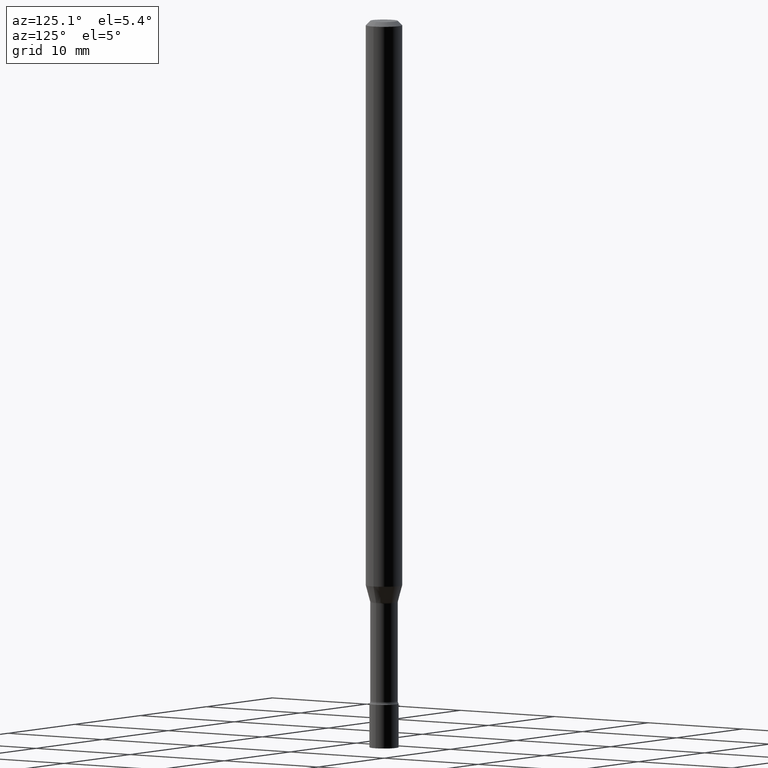
[diagram: clean part render]
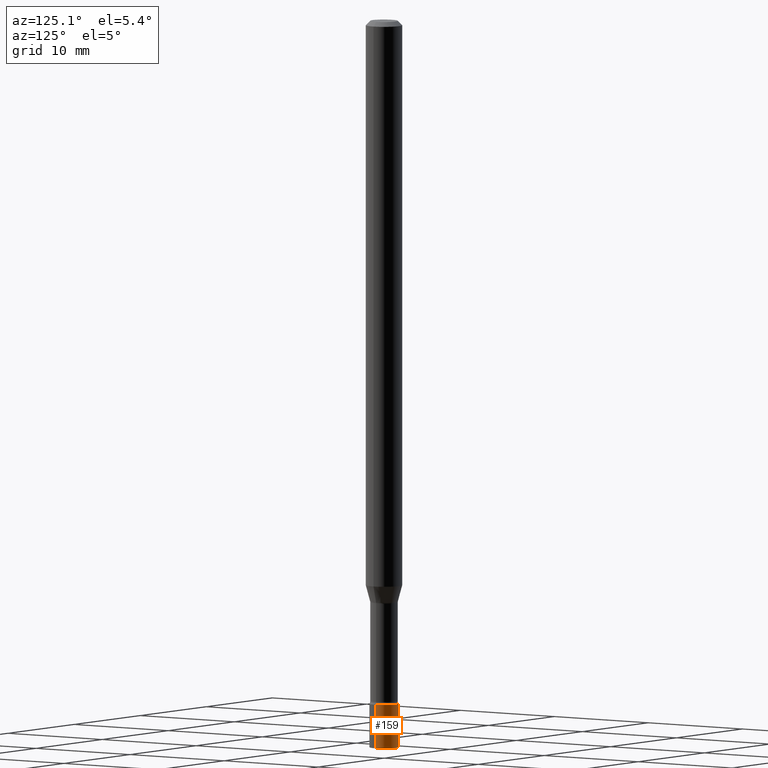
[diagram: same view with one face highlighted and labeled with its STEP entity id]
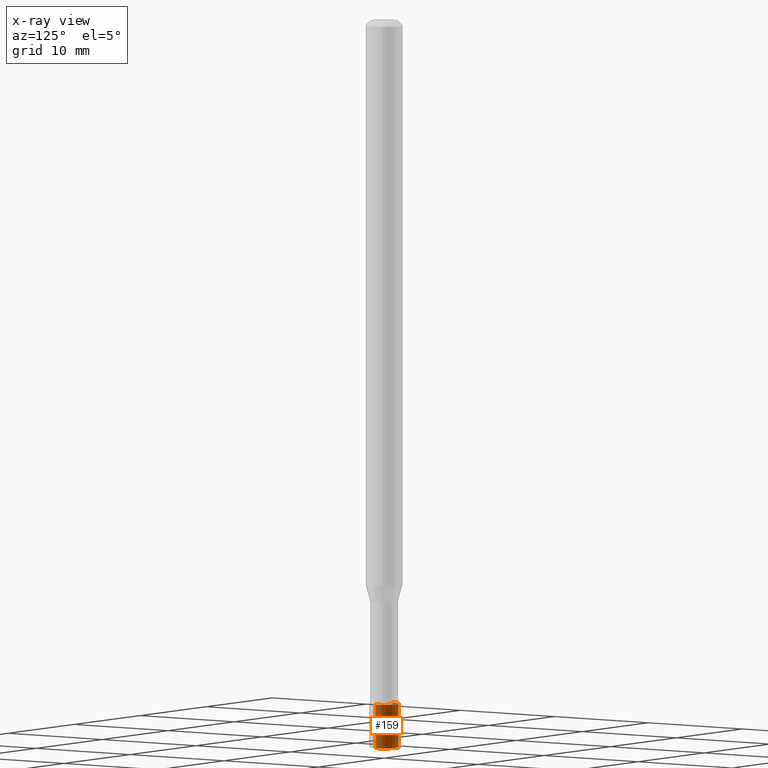
[diagram: x-ray of the same camera — body ghosted, the highlighted face saturated]
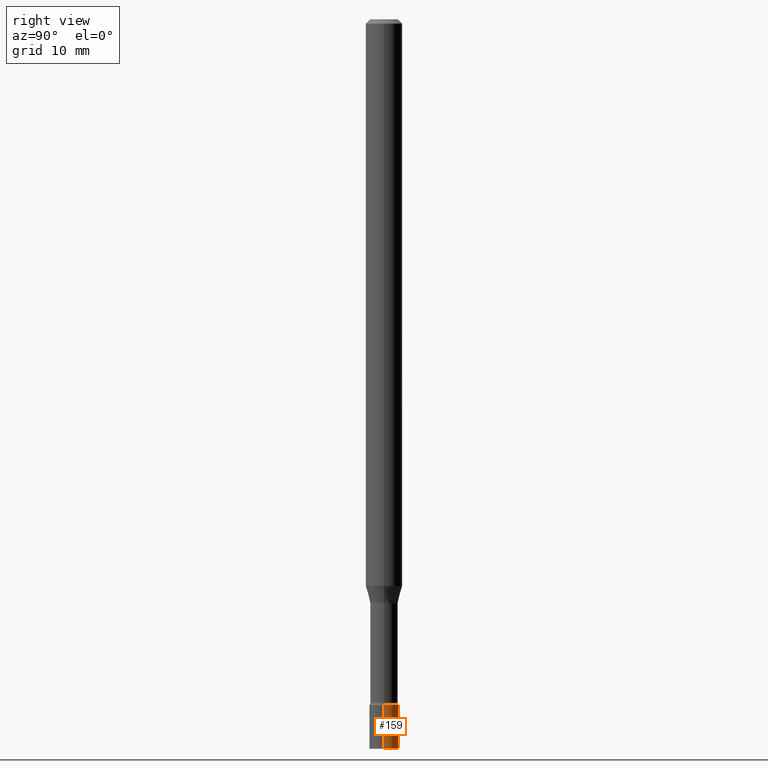
[diagram: same view with one face highlighted and labeled with its STEP entity id]
A machine part, auxiliary view. The second image highlights one B-rep face of the part: STEP entity #159.
The next image is the same camera in x-ray: the body ghosted, the highlighted face saturated — about 0% of this face is hidden behind the body in this view.
A second angle (right view) of the same face is appended — the face is thin or edge-on in the first view.
In plain terms, the highlighted cylindrical surface (edge-blend (fillet) strip) has radius 1.27 mm, axis along (-0, 0, 1).
Its self-contained STEP definition (entity closure, byte-faithful):
#26 = DIRECTION ( 'NONE',  ( 1.000000000000000000, -6.982962677686274599E-15, 0.000000000000000000 ) ) ;
#27 = CARTESIAN_POINT ( 'NONE',  ( 0.05000000000000000278, -8.554129280165705119E-15, -2.349999999999999645 ) ) ;
#47 = VECTOR ( 'NONE', #57, 39.37007874015748143 ) ;
#50 = CARTESIAN_POINT ( 'NONE',  ( 0.05000000000000000278, -3.491481338843133848E-16, 2.438088387897968247E-30 ) ) ;
#57 = DIRECTION ( 'NONE',  ( -2.445468806185136877E-29, 3.491481338843145188E-15, 1.000000000000000000 ) ) ;
#73 = EDGE_CURVE ( 'NONE', #196, #320, #251, .T. ) ;
#85 = CIRCLE ( 'NONE', #190, 0.05000000000000000278 ) ;
#104 = CARTESIAN_POINT ( 'NONE',  ( -0.05000000000000000278, 3.552713678800501127E-16, -2.459467545127453311E-30 ) ) ;
#120 = ORIENTED_EDGE ( 'NONE', *, *, #148, .T. ) ;
#122 = ORIENTED_EDGE ( 'NONE', *, *, #455, .T. ) ;
#148 = EDGE_CURVE ( 'NONE', #366, #477, #390, .T. ) ;
#159 = ADVANCED_FACE ( 'NONE', ( #389 ), #430, .T. ) ;
#177 = DIRECTION ( 'NONE',  ( 1.000000000000000000, -6.982962677686267499E-15, 4.876176775795936353E-29 ) ) ;
#189 = CARTESIAN_POINT ( 'NONE',  ( 6.113672015462842613E-29, -8.728703347107864943E-15, -2.500000000000000000 ) ) ;
#190 = AXIS2_PLACEMENT_3D ( 'NONE', #341, #221, #26 ) ;
#195 = CARTESIAN_POINT ( 'NONE',  ( -0.05000000000000000278, -8.111570878814577955E-15, -2.500000000000000000 ) ) ;
#196 = VERTEX_POINT ( 'NONE', #343 ) ;
#213 = ORIENTED_EDGE ( 'NONE', *, *, #318, .F. ) ;
#221 = DIRECTION ( 'NONE',  ( -2.445468806185136597E-29, 3.491481338843145583E-15, 1.000000000000000000 ) ) ;
#227 = DIRECTION ( 'NONE',  ( -2.445468806185136597E-29, 3.491481338843145583E-15, 1.000000000000000000 ) ) ;
#251 = LINE ( 'NONE', #50, #47 ) ;
#318 = EDGE_CURVE ( 'NONE', #320, #477, #85, .T. ) ;
#320 = VERTEX_POINT ( 'NONE', #27 ) ;
#335 = CIRCLE ( 'NONE', #393, 0.05000000000000000278 ) ;
#341 = CARTESIAN_POINT ( 'NONE',  ( 5.746851694535070554E-29, -8.204981146281391784E-15, -2.349999999999999645 ) ) ;
#343 = CARTESIAN_POINT ( 'NONE',  ( 0.05000000000000000278, -9.077851480992178278E-15, -2.500000000000000000 ) ) ;
#353 = DIRECTION ( 'NONE',  ( -2.445468806185136597E-29, 3.491481338843145583E-15, 1.000000000000000000 ) ) ;
#354 = VECTOR ( 'NONE', #437, 39.37007874015748143 ) ;
#366 = VERTEX_POINT ( 'NONE', #195 ) ;
#389 = FACE_OUTER_BOUND ( 'NONE', #485, .T. ) ;
#390 = LINE ( 'NONE', #104, #354 ) ;
#393 = AXIS2_PLACEMENT_3D ( 'NONE', #189, #353, #517 ) ;
#426 = AXIS2_PLACEMENT_3D ( 'NONE', #506, #227, #177 ) ;
#430 = CYLINDRICAL_SURFACE ( 'NONE', #426, 0.05000000000000000278 ) ;
#437 = DIRECTION ( 'NONE',  ( -2.445468806185136877E-29, 3.491481338843145188E-15, 1.000000000000000000 ) ) ;
#455 = EDGE_CURVE ( 'NONE', #196, #366, #335, .T. ) ;
#458 = ORIENTED_EDGE ( 'NONE', *, *, #73, .F. ) ;
#477 = VERTEX_POINT ( 'NONE', #484 ) ;
#484 = CARTESIAN_POINT ( 'NONE',  ( -0.05000000000000000278, -8.111570878814577955E-15, -2.349999999999999645 ) ) ;
#485 = EDGE_LOOP ( 'NONE', ( #122, #120, #213, #458 ) ) ;
#506 = CARTESIAN_POINT ( 'NONE',  ( 0.000000000000000000, 0.000000000000000000, 0.000000000000000000 ) ) ;
#517 = DIRECTION ( 'NONE',  ( 1.000000000000000000, -6.982962677686274599E-15, 0.000000000000000000 ) ) ;